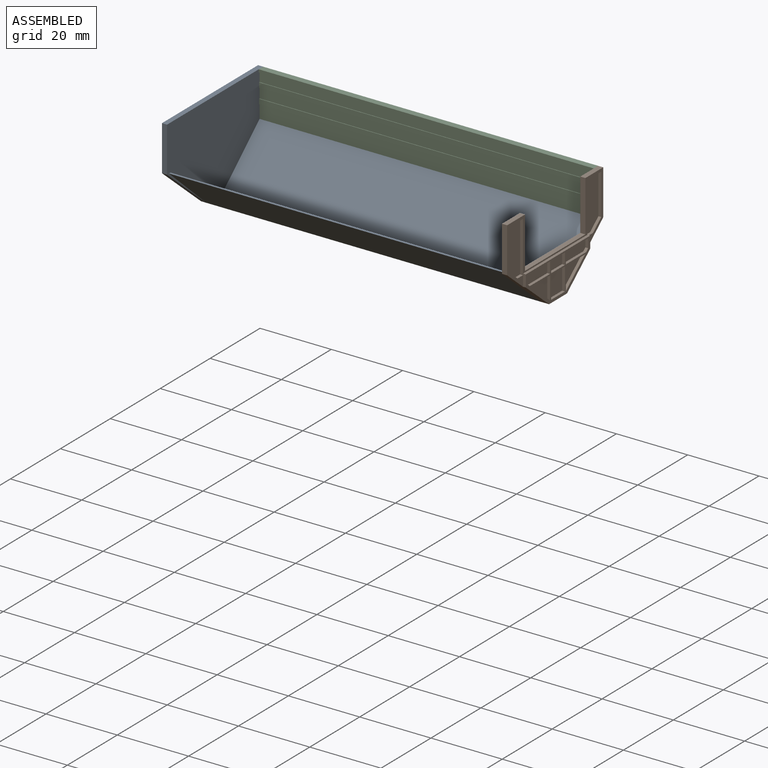
[diagram: assembled view]
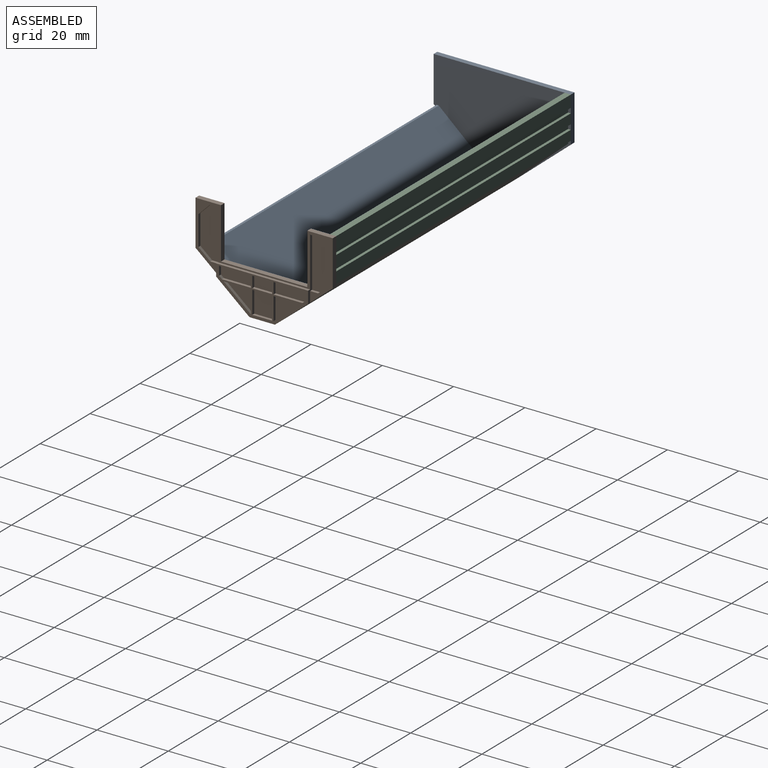
[diagram: assembled view, second angle]
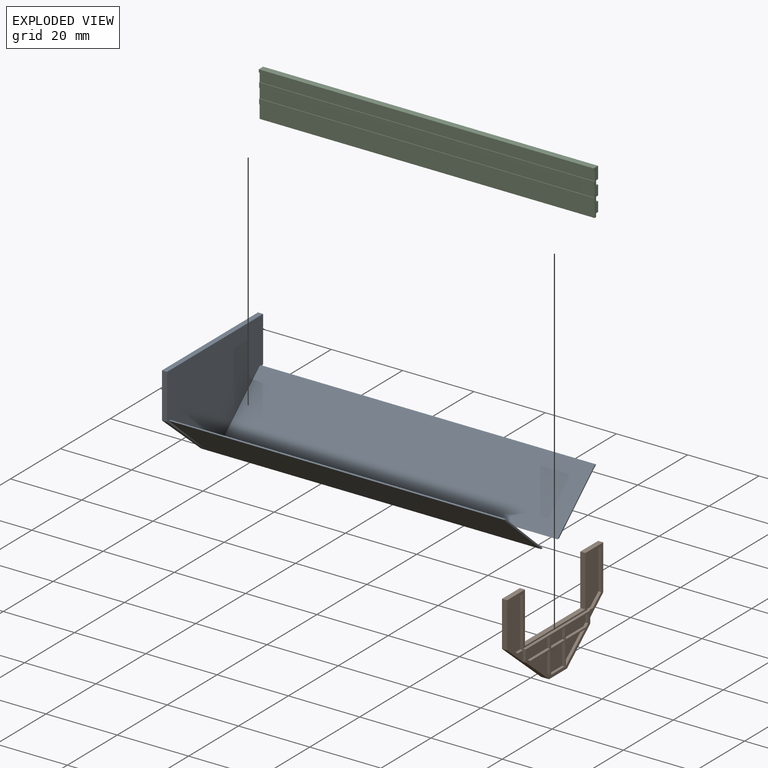
[diagram: exploded view]
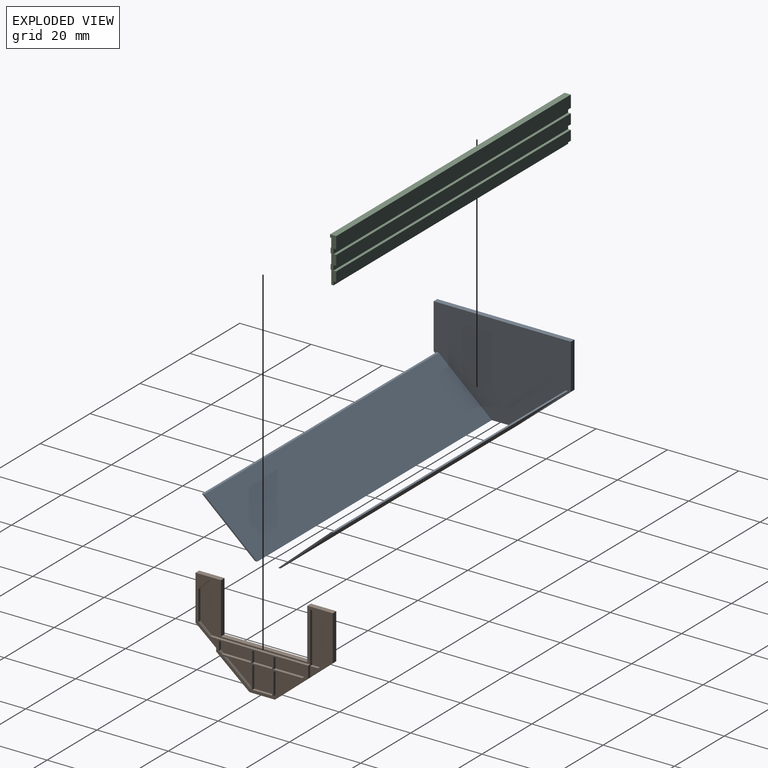
[diagram: exploded view, second angle]
ASSEMBLY  parts=3 mates=2
PART A: 45 faces, bbox 95.4x38.5x25.8 mm
  f0: plane 38.5x25.8mm, normal (1,0,0), area 771.2mm2, adj f1,f2,f3,f4,f5,f6,f37,f38
  f1: plane 15.68x13.1mm, normal (0,-0.64,-0.77), area 29.2mm2, adj f0,f2,f6,f30
  f2: plane 95.43x7.14mm, normal (0,0,-1), area 129.6mm2, adj f0,f1,f3,f30,f38,f39,f40,f41
  f3: plane 15.68x13.1mm, normal (0,0.64,-0.77), area 29.2mm2, adj f0,f2,f4,f30
  f4: plane 12.7x1.43mm, normal (0,1,0), area 18.1mm2, adj f0,f3,f5,f30
  f5: plane 38.5x1.43mm, normal (0,0,1), area 55mm2, adj f0,f4,f6,f30
  f6: plane 12.7x1.43mm, normal (0,-1,0), area 18.1mm2, adj f0,f1,f5,f30
  f7: plane 11.25x0.79mm, normal (0,-1,0), area 8.9mm2, adj f8,f29,f30,f31
  f8: plane 13.53x0.79mm, normal (0,0,-1), area 10.7mm2, adj f7,f29,f30,f31
  f9: plane 14.49x0.79mm, normal (0,0,1), area 11.5mm2, adj f10,f24,f30,f32
  f10: plane 11.51x0.79mm, normal (0,-1,0), area 9.1mm2, adj f9,f11,f30,f32
  f11: plane 11.3x0.79mm, normal (0,0,-1), area 9mm2, adj f10,f12,f30,f32
  f12: plane 3.19x3.19mm, normal (0,0.71,-0.71), area 3.6mm2, adj f11,f24,f30,f32
  f13: plane 14.49x0.79mm, normal (0,0,1), area 11.5mm2, adj f14,f25,f30,f33
  f14: plane 11.51x0.79mm, normal (0,-1,0), area 9.1mm2, adj f13,f15,f30,f33
  f15: plane 14.49x0.79mm, normal (0,0,-1), area 11.5mm2, adj f14,f25,f30,f33
  f16: plane 6.35x0.79mm, normal (0,0,1), area 5mm2, adj f17,f26,f30,f34
  f17: plane 11.51x0.79mm, normal (0,-1,0), area 9.1mm2, adj f16,f18,f30,f34
  f18: plane 6.35x0.79mm, normal (0,0,-1), area 5mm2, adj f17,f26,f30,f34
  f19: plane 11.91x0.79mm, normal (0,-1,0), area 9.5mm2, adj f20,f27,f30,f35
  f20: plane 6.35x0.79mm, normal (0,0,-1), area 5mm2, adj f19,f21,f30,f35
  f21: plane 11.91x0.79mm, normal (0,1,0), area 9.5mm2, adj f20,f27,f30,f35
  f22: plane 13.53x0.79mm, normal (0,0,-1), area 10.7mm2, adj f23,f28,f30,f36
  f23: plane 11.25x0.79mm, normal (0,1,0), area 8.9mm2, adj f22,f28,f30,f36
  f24: plane 8.32x0.79mm, normal (0,1,0), area 6.6mm2, adj f9,f12,f30,f32
  f25: plane 11.51x0.79mm, normal (0,1,0), area 9.1mm2, adj f13,f15,f30,f33
  f26: plane 11.51x0.79mm, normal (0,1,0), area 9.1mm2, adj f16,f18,f30,f34
  f27: plane 6.35x0.79mm, normal (0,0,1), area 5mm2, adj f19,f21,f30,f35
  f28: plane 13.53x11.25mm, normal (0,-0.64,0.77), area 14mm2, adj f22,f23,f30,f36
  f29: plane 13.53x11.25mm, normal (0,0.64,0.77), area 14mm2, adj f7,f8,f30,f31
  f30: plane 38.5x25.8mm, normal (-1,0,0), area 158.6mm2, adj f1,f2,f3,f4,f5,f6,f7,f8
  f31: plane 13.53x11.25mm, normal (-1,0,0), area 76.1mm2, adj f7,f8,f29
  f32: plane 14.49x11.51mm, normal (-1,0,0), area 161.6mm2, adj f9,f10,f11,f12,f24
  f33: plane 14.49x11.51mm, normal (-1,0,0), area 166.7mm2, adj f13,f14,f15,f25
  f34: plane 11.51x6.35mm, normal (-1,0,0), area 73.1mm2, adj f16,f17,f18,f26
  f35: plane 11.91x6.35mm, normal (-1,0,0), area 75.6mm2, adj f19,f20,f21,f27
  f36: plane 13.53x11.25mm, normal (-1,0,0), area 76.1mm2, adj f22,f23,f28
  f37: plane 94.01x0.64mm, normal (0,0,1), area 59.7mm2, adj f0,f38,f39,f40
  f38: plane 94.01x14.88mm, normal (0,-0.66,-0.75), area 1863.6mm2, adj f0,f2,f37,f40
  f39: plane 94.01x14.88mm, normal (0,0.66,0.75), area 1863.6mm2, adj f0,f2,f37,f40
  f40: plane 15.52x13.1mm, normal (1,0,0), area 8.3mm2, adj f2,f37,f38,f39
  f41: plane 94.01x14.88mm, normal (0,0.66,-0.75), area 1863.6mm2, adj f0,f2,f42,f44
  f42: plane 94.01x0.64mm, normal (0,0,1), area 59.7mm2, adj f0,f41,f43,f44
  f43: plane 94.01x14.88mm, normal (0,-0.66,0.75), area 1863.6mm2, adj f0,f2,f42,f44
  f44: plane 15.52x13.1mm, normal (1,0,0), area 8.3mm2, adj f2,f41,f42,f43
PART B: 57 faces, bbox 2.2x38.5x25.8 mm
  f0: plane 38.5x18.01mm, normal (1,0,0), area 83.5mm2, adj f1,f2,f3,f5,f6,f7,f8,f9
  f1: plane 7.14x1.43mm, normal (0,0,1), area 10.2mm2, adj f0,f2,f10,f11
  f2: plane 12.7x1.43mm, normal (0,-1,0), area 18.1mm2, adj f0,f1,f3,f11
  f3: plane 15.68x13.1mm, normal (0,-0.64,-0.77), area 38.8mm2, adj f0,f2,f4,f11,f12,f50
  f4: plane 7.14x2.22mm, normal (0,0,-1), area 15.9mm2, adj f3,f5,f11,f50
  f5: plane 15.68x13.1mm, normal (0,0.64,-0.77), area 38.8mm2, adj f0,f4,f6,f11,f17,f50
  f6: plane 12.7x1.43mm, normal (0,1,0), area 18.1mm2, adj f0,f5,f7,f11
  f7: plane 7.14x1.43mm, normal (0,0,1), area 10.2mm2, adj f0,f6,f8,f11
  f8: plane 14.29x1.43mm, normal (0,-1,0), area 20.4mm2, adj f0,f7,f9,f11
  f9: plane 24.21x1.43mm, normal (0,0,1), area 34.6mm2, adj f0,f8,f10,f11
  f10: plane 14.29x1.43mm, normal (0,1,0), area 20.4mm2, adj f0,f1,f9,f11
  f11: plane 38.5x25.8mm, normal (-1,0,0), area 441.9mm2, adj f1,f2,f3,f4,f5,f6,f7,f8
  f12: plane 17.21x1.59mm, normal (0,-1,0), area 14mm2, adj f0,f3,f13,f21,f23,f31,f50
  f13: plane 2.21x0.79mm, normal (0,0,1), area 1.8mm2, adj f0,f12,f14,f23
  f14: plane 3.34x2.78mm, normal (0,0.64,0.77), area 3.4mm2, adj f0,f13,f15,f23
  f15: plane 8.32x0.79mm, normal (0,1,0), area 6.6mm2, adj f0,f14,f16,f23
  f16: plane 3.19x3.18mm, normal (0,0.71,-0.71), area 3.6mm2, adj f0,f15,f21,f23
  f17: plane 17.21x1.59mm, normal (0,1,0), area 14mm2, adj f0,f5,f18,f22,f24,f31,f50
  f18: plane 5.56x0.79mm, normal (0,0,-1), area 4.4mm2, adj f0,f17,f19,f24
  f19: plane 11.51x0.79mm, normal (0,-1,0), area 9.1mm2, adj f0,f18,f20,f24
  f20: plane 3.34x2.78mm, normal (0,-0.64,0.77), area 3.4mm2, adj f0,f19,f22,f24
  f21: plane 2.38x0.79mm, normal (0,0,-1), area 1.9mm2, adj f0,f12,f16,f23
  f22: plane 2.21x0.79mm, normal (0,0,1), area 1.8mm2, adj f0,f17,f20,f24
  f23: plane 14.29x5.56mm, normal (1,0,0), area 69.7mm2, adj f12,f13,f14,f15,f16,f21
  f24: plane 14.29x5.56mm, normal (1,0,0), area 74.7mm2, adj f17,f18,f19,f20,f22
  f25: plane 8.12x0.79mm, normal (0,0,1), area 6.4mm2, adj f26,f49,f50,f51
  f26: plane 0.81x0.79mm, normal (0,0.64,0.77), area 0.8mm2, adj f25,f27,f50,f51
  f27: plane 2.5x0.79mm, normal (0,1,0), area 2mm2, adj f26,f28,f50,f51
  f28: plane 8.93x0.79mm, normal (0,0,-1), area 7.1mm2, adj f27,f49,f50,f51
  f29: plane 6.35x0.79mm, normal (0,1,0), area 5mm2, adj f30,f44,f50,f52
  f30: plane 7.64x0.79mm, normal (0,0,-1), area 6.1mm2, adj f29,f44,f50,f52
  f31: plane 25.8x0.79mm, normal (0,0,1), area 20.5mm2, adj f0,f12,f17,f50
  f32: plane 6.35x0.79mm, normal (0,1,0), area 5mm2, adj f33,f45,f50,f53
  f33: plane 5.56x0.79mm, normal (0,0,-1), area 4.4mm2, adj f32,f34,f50,f53
  f34: plane 6.35x0.79mm, normal (0,-1,0), area 5mm2, adj f33,f45,f50,f53
  f35: plane 7.64x0.79mm, normal (0,0,-1), area 6.1mm2, adj f36,f46,f50,f54
  f36: plane 6.35x0.79mm, normal (0,-1,0), area 5mm2, adj f35,f46,f50,f54
  f37: plane 0.81x0.79mm, normal (0,-0.64,0.77), area 0.8mm2, adj f38,f47,f50,f55
  f38: plane 8.12x0.79mm, normal (0,0,1), area 6.4mm2, adj f37,f39,f50,f55
  f39: plane 3.18x0.79mm, normal (0,1,0), area 2.5mm2, adj f38,f40,f50,f55
  f40: plane 8.93x0.79mm, normal (0,0,-1), area 7.1mm2, adj f39,f47,f50,f55
  f41: plane 3.18x0.79mm, normal (0,1,0), area 2.5mm2, adj f42,f48,f50,f56
  f42: plane 5.56x0.79mm, normal (0,0,-1), area 4.4mm2, adj f41,f43,f50,f56
  f43: plane 3.18x0.79mm, normal (0,-1,0), area 2.5mm2, adj f42,f48,f50,f56
  f44: plane 7.64x6.35mm, normal (0,-0.64,0.77), area 7.9mm2, adj f29,f30,f50,f52
  f45: plane 5.56x0.79mm, normal (0,0,1), area 4.4mm2, adj f32,f34,f50,f53
  f46: plane 7.64x6.35mm, normal (0,0.64,0.77), area 7.9mm2, adj f35,f36,f50,f54
  f47: plane 2.5x0.79mm, normal (0,-1,0), area 2mm2, adj f37,f40,f50,f55
  f48: plane 5.56x0.79mm, normal (0,0,1), area 4.4mm2, adj f41,f43,f50,f56
  f49: plane 3.18x0.79mm, normal (0,-1,0), area 2.5mm2, adj f25,f28,f50,f51
  f50: plane 25.8x11.11mm, normal (1,0,0), area 56.4mm2, adj f3,f4,f5,f12,f17,f25,f26,f27
  f51: plane 8.93x3.18mm, normal (1,0,0), area 28.1mm2, adj f25,f26,f27,f28,f49
  f52: plane 7.64x6.35mm, normal (1,0,0), area 24.3mm2, adj f29,f30,f44
  f53: plane 6.35x5.56mm, normal (1,0,0), area 35.3mm2, adj f32,f33,f34,f45
  f54: plane 7.64x6.35mm, normal (1,0,0), area 24.3mm2, adj f35,f36,f46
  f55: plane 8.93x3.18mm, normal (1,0,0), area 28.1mm2, adj f37,f38,f39,f40,f47
  f56: plane 5.56x3.18mm, normal (1,0,0), area 17.6mm2, adj f41,f42,f43,f48
PART C: 26 faces, bbox 94x1.8x12.7 mm
  f0: plane 93.99x2.78mm, normal (0,-1,0), area 261.1mm2, adj f6,f8,f19,f21
  f1: plane 93.99x3.76mm, normal (0,-1,0), area 353.6mm2, adj f6,f7,f8,f22
  f2: plane 93.99x2.58mm, normal (0,-1,0), area 242.5mm2, adj f6,f8,f18,f24
  f3: plane 93.99x1.4mm, normal (0,1,0), area 131.3mm2, adj f6,f8,f13,f15
  f4: plane 93.99x1.39mm, normal (0,1,0), area 130.6mm2, adj f6,f8,f10,f12
  f5: plane 93.99x1.75mm, normal (0,0,1), area 164.7mm2, adj f6,f8,f11,f25
  f6: plane 12.7x1.75mm, normal (-1,0,0), area 15.8mm2, adj f0,f1,f2,f3,f4,f5,f7,f9
  f7: plane 93.99x0.64mm, normal (0,0,-1), area 59.7mm2, adj f1,f6,f8,f9
  f8: plane 12.7x1.75mm, normal (1,0,0), area 15.8mm2, adj f0,f1,f2,f3,f4,f5,f7,f9
  f9: plane 93.99x0.99mm, normal (0,1,0), area 93.4mm2, adj f6,f7,f8,f16
  f10: plane 93.99x0.79mm, normal (0,0,-1), area 74mm2, adj f4,f6,f8,f11
  f11: plane 93.99x3.37mm, normal (0,1,0), area 317.1mm2, adj f5,f6,f8,f10
  f12: plane 93.99x0.79mm, normal (0,0,1), area 74mm2, adj f4,f6,f8,f14
  f13: plane 93.99x0.79mm, normal (0,0,-1), area 74mm2, adj f3,f6,f8,f14
  f14: plane 93.99x2.78mm, normal (0,1,0), area 261.1mm2, adj f6,f8,f12,f13
  f15: plane 93.99x0.79mm, normal (0,0,1), area 74mm2, adj f3,f6,f8,f17
  f16: plane 93.99x0.79mm, normal (0,0,-1), area 74mm2, adj f6,f8,f9,f17
  f17: plane 93.99x2.77mm, normal (0,1,0), area 260.2mm2, adj f6,f8,f15,f16
  f18: plane 93.99x0.17mm, normal (0,0,1), area 15.5mm2, adj f2,f6,f8,f20
  f19: plane 93.99x0.17mm, normal (0,0,-1), area 15.5mm2, adj f0,f6,f8,f20
  f20: plane 93.99x1.39mm, normal (0,-1,0), area 130.6mm2, adj f6,f8,f18,f19
  f21: plane 93.99x0.17mm, normal (0,0,1), area 15.5mm2, adj f0,f6,f8,f23
  f22: plane 93.99x0.17mm, normal (0,0,-1), area 15.5mm2, adj f1,f6,f8,f23
  f23: plane 93.99x1.4mm, normal (0,-1,0), area 131.3mm2, adj f6,f8,f21,f22
  f24: plane 93.99x0.33mm, normal (0,0,-1), area 31mm2, adj f2,f6,f8,f25
  f25: plane 93.99x0.79mm, normal (0,-1,0), area 74.6mm2, adj f5,f6,f8,f24
PLACE A t=(-50.94,78.16,-56.57)mm
PLACE B t=(43.69,78.16,-56.57)mm
PLACE C t=(16.17,0.31,-51.47)mm
MATE fastened B.f7 <-> C.f5  axis (0,0,-1) through (43.69,1.73,-9.9)mm
MATE fastened C.f5 <-> A.f5  axis (0,0,1) through (-50.31,1.73,-9.9)mm
